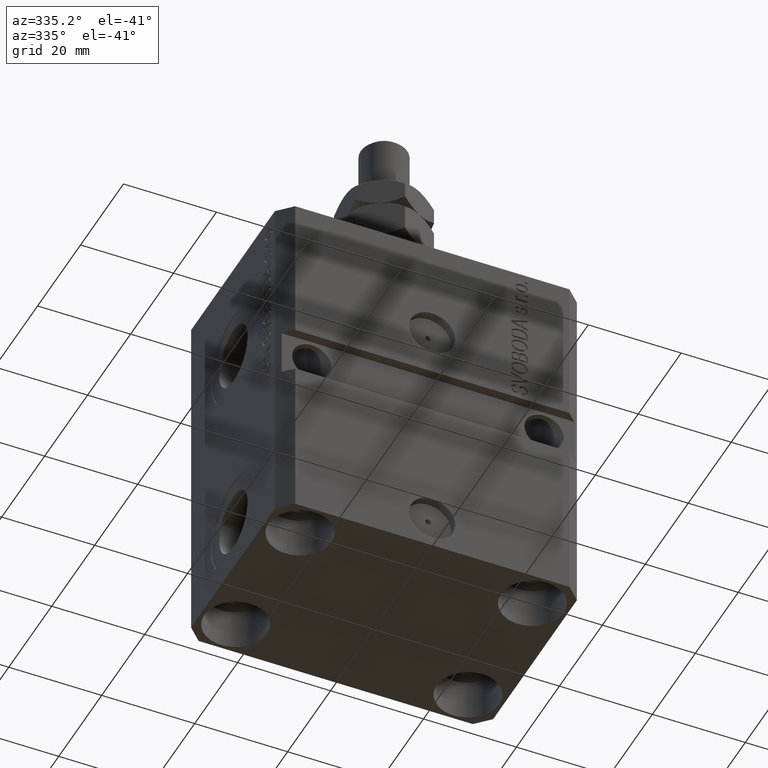
[diagram: clean part render]
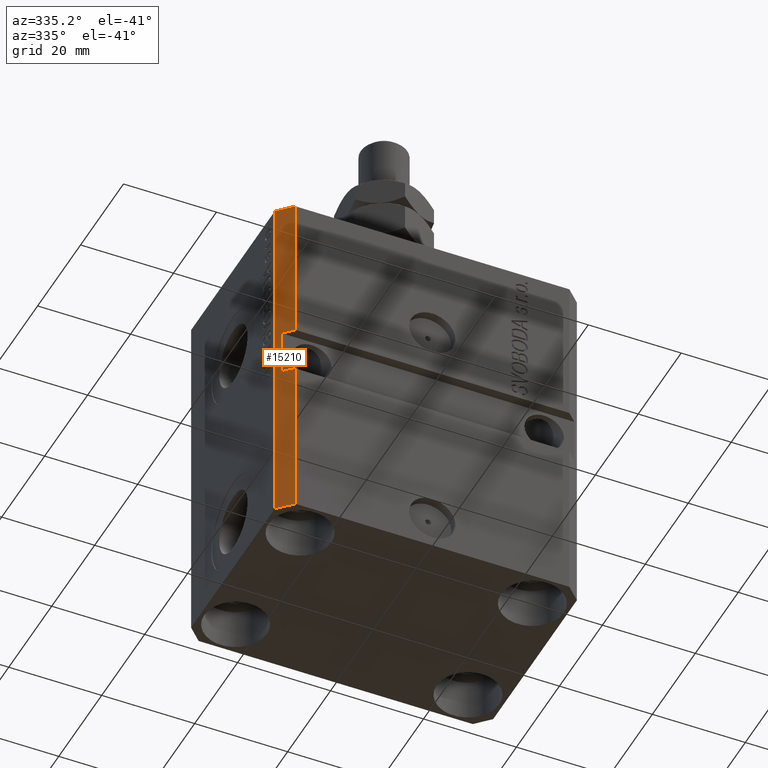
[diagram: same view with one face highlighted and labeled with its STEP entity id]
A machine part, auxiliary view. The second image highlights one B-rep face of the part: STEP entity #15210.
In plain terms, the highlighted planar face has unit normal (-0.7071, -0.7071, 0).
Its self-contained STEP definition (entity closure, byte-faithful):
#409 = CARTESIAN_POINT ( 'NONE',  ( -32.49999999999650413, -19.49999999999949907, -77.00000000000000000 ) ) ;
#1345 = VECTOR ( 'NONE', #43714, 1000.000000000000114 ) ;
#1813 = EDGE_CURVE ( 'NONE', #12609, #37153, #35519, .T. ) ;
#5143 = CARTESIAN_POINT ( 'NONE',  ( -32.49999999999650413, -19.49999999999949907, 0.000000000000000000 ) ) ;
#5463 = DIRECTION ( 'NONE',  ( 0.7071067811865474617, -0.7071067811865474617, 0.000000000000000000 ) ) ;
#6746 = CARTESIAN_POINT ( 'NONE',  ( -32.49999999999650413, -19.49999999999949907, -77.00000000000000000 ) ) ;
#6890 = VECTOR ( 'NONE', #43468, 1000.000000000000000 ) ;
#7105 = CARTESIAN_POINT ( 'NONE',  ( -31.49999999999650413, -20.49999999999950262, -32.00000000000000000 ) ) ;
#7342 = EDGE_CURVE ( 'NONE', #10223, #37153, #26551, .T. ) ;
#7401 = ORIENTED_EDGE ( 'NONE', *, *, #33862, .F. ) ;
#9026 = LINE ( 'NONE', #23390, #1345 ) ;
#10223 = VERTEX_POINT ( 'NONE', #28783 ) ;
#11225 = LINE ( 'NONE', #409, #6890 ) ;
#12609 = VERTEX_POINT ( 'NONE', #41018 ) ;
#13026 = CARTESIAN_POINT ( 'NONE',  ( -29.49999999999650413, -22.49999999999949907, -41.99999999999999289 ) ) ;
#13408 = VERTEX_POINT ( 'NONE', #36379 ) ;
#14038 = FACE_OUTER_BOUND ( 'NONE', #37215, .T. ) ;
#15210 = ADVANCED_FACE ( 'NONE', ( #14038 ), #24384, .T. ) ;
#16358 = EDGE_CURVE ( 'NONE', #21038, #37924, #9026, .T. ) ;
#17361 = ORIENTED_EDGE ( 'NONE', *, *, #33619, .F. ) ;
#18334 = CARTESIAN_POINT ( 'NONE',  ( -32.49999999999650413, -19.49999999999949551, -41.99999999999999289 ) ) ;
#18417 = VECTOR ( 'NONE', #29401, 1000.000000000000114 ) ;
#19933 = ORIENTED_EDGE ( 'NONE', *, *, #31932, .T. ) ;
#20630 = ORIENTED_EDGE ( 'NONE', *, *, #16358, .F. ) ;
#21038 = VERTEX_POINT ( 'NONE', #30424 ) ;
#21497 = LINE ( 'NONE', #29038, #42126 ) ;
#21794 = VECTOR ( 'NONE', #5463, 1000.000000000000114 ) ;
#23270 = DIRECTION ( 'NONE',  ( 0.000000000000000000, 0.000000000000000000, 1.000000000000000000 ) ) ;
#23390 = CARTESIAN_POINT ( 'NONE',  ( -32.49999999999650413, -19.49999999999950262, -32.00000000000000000 ) ) ;
#24384 = PLANE ( 'NONE',  #32179 ) ;
#25692 = VECTOR ( 'NONE', #23270, 1000.000000000000000 ) ;
#26551 = LINE ( 'NONE', #18334, #18417 ) ;
#27915 = VECTOR ( 'NONE', #29164, 1000.000000000000114 ) ;
#28162 = ORIENTED_EDGE ( 'NONE', *, *, #30703, .T. ) ;
#28630 = DIRECTION ( 'NONE',  ( 0.7071067811865474617, -0.7071067811865474617, 0.000000000000000000 ) ) ;
#28783 = CARTESIAN_POINT ( 'NONE',  ( -31.49999999999650413, -20.49999999999949907, -41.99999999999999289 ) ) ;
#29038 = CARTESIAN_POINT ( 'NONE',  ( -31.49999999999650413, -20.49999999999950262, -77.00000000000000000 ) ) ;
#29164 = DIRECTION ( 'NONE',  ( 0.7071067811865474617, -0.7071067811865474617, 0.000000000000000000 ) ) ;
#29401 = DIRECTION ( 'NONE',  ( 0.7071067811865474617, -0.7071067811865474617, 7.548521435980497974E-17 ) ) ;
#30131 = CARTESIAN_POINT ( 'NONE',  ( -32.49999999999650413, -19.49999999999949907, 0.000000000000000000 ) ) ;
#30424 = CARTESIAN_POINT ( 'NONE',  ( -29.49999999999650058, -22.49999999999949907, -32.00000000000000000 ) ) ;
#30703 = EDGE_CURVE ( 'NONE', #32872, #12609, #38624, .T. ) ;
#31090 = CARTESIAN_POINT ( 'NONE',  ( -32.49999999999650413, -19.49999999999949907, -77.00000000000000000 ) ) ;
#31142 = VECTOR ( 'NONE', #38131, 1000.000000000000000 ) ;
#31931 = ORIENTED_EDGE ( 'NONE', *, *, #1813, .T. ) ;
#31932 = EDGE_CURVE ( 'NONE', #10223, #37924, #21497, .T. ) ;
#32179 = AXIS2_PLACEMENT_3D ( 'NONE', #6746, #35228, #28630 ) ;
#32398 = VERTEX_POINT ( 'NONE', #30131 ) ;
#32872 = VERTEX_POINT ( 'NONE', #35648 ) ;
#33396 = LINE ( 'NONE', #5143, #27915 ) ;
#33413 = CARTESIAN_POINT ( 'NONE',  ( -29.49999999999650413, -22.49999999999949907, -77.00000000000000000 ) ) ;
#33619 = EDGE_CURVE ( 'NONE', #32398, #13408, #33396, .T. ) ;
#33862 = EDGE_CURVE ( 'NONE', #32872, #32398, #11225, .T. ) ;
#34715 = ORIENTED_EDGE ( 'NONE', *, *, #7342, .F. ) ;
#35228 = DIRECTION ( 'NONE',  ( -0.7071067811865475727, -0.7071067811865475727, 0.000000000000000000 ) ) ;
#35290 = EDGE_CURVE ( 'NONE', #21038, #13408, #36944, .T. ) ;
#35519 = LINE ( 'NONE', #45635, #31142 ) ;
#35648 = CARTESIAN_POINT ( 'NONE',  ( -32.49999999999650413, -19.49999999999949907, -77.00000000000000000 ) ) ;
#36379 = CARTESIAN_POINT ( 'NONE',  ( -29.49999999999650413, -22.49999999999949907, 0.000000000000000000 ) ) ;
#36944 = LINE ( 'NONE', #33413, #25692 ) ;
#37153 = VERTEX_POINT ( 'NONE', #13026 ) ;
#37215 = EDGE_LOOP ( 'NONE', ( #34715, #19933, #20630, #41052, #17361, #7401, #28162, #31931 ) ) ;
#37924 = VERTEX_POINT ( 'NONE', #7105 ) ;
#38131 = DIRECTION ( 'NONE',  ( 0.000000000000000000, 0.000000000000000000, 1.000000000000000000 ) ) ;
#38624 = LINE ( 'NONE', #31090, #21794 ) ;
#39402 = DIRECTION ( 'NONE',  ( 0.000000000000000000, 0.000000000000000000, 1.000000000000000000 ) ) ;
#41018 = CARTESIAN_POINT ( 'NONE',  ( -29.49999999999650413, -22.49999999999949907, -77.00000000000000000 ) ) ;
#41052 = ORIENTED_EDGE ( 'NONE', *, *, #35290, .T. ) ;
#42126 = VECTOR ( 'NONE', #39402, 1000.000000000000000 ) ;
#43468 = DIRECTION ( 'NONE',  ( 0.000000000000000000, 0.000000000000000000, 1.000000000000000000 ) ) ;
#43714 = DIRECTION ( 'NONE',  ( -0.7071067811865474617, 0.7071067811865474617, 7.548521435980497974E-17 ) ) ;
#45635 = CARTESIAN_POINT ( 'NONE',  ( -29.49999999999650413, -22.49999999999949907, -77.00000000000000000 ) ) ;